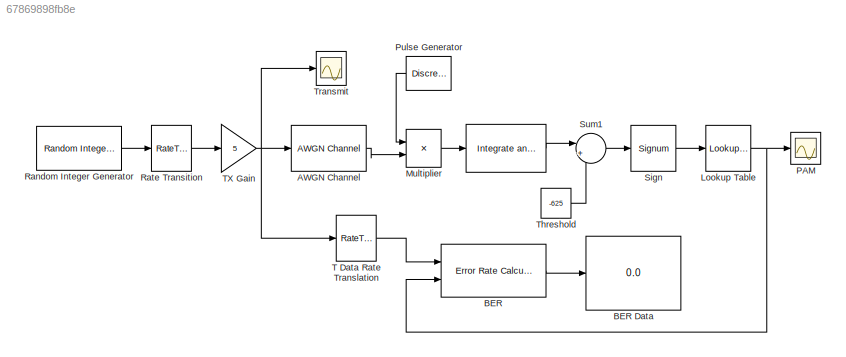
MODEL slx_67869898fb8e
KIND model
BLOCK [Reference]    REF=commfilt2/Integrate
and Dump
  LockScale = off
  Ports = [1, 1]
  SourceBlock = commfilt2/Integrate\nand Dump
  SourceType = Integrate and Dump
  accumFracLength = 30
  accumMode = Inherit via internal rule
  accumWordLength = 32
  nodump = off
  obssamples = 50
  offsetsamples = 0
  outputFracLength = 30
  outputMode = Same as accumulator
  outputWordLength = 32
  overflowMode = off
  roundingMode = Floor
BLOCK [Reference] AWGN Channel  REF=commchan3/AWGN
Channel
  EbNodB = 40
  EsNodB = 10
  InputProcessing = Inherited (this choice will be removed - see release notes)
  Ports = [1, 1]
  Ps = 25
  SNRdB = 10
  SourceBlock = commchan3/AWGN\nChannel
  SourceType = AWGN Channel
  Tsym = 1e-3
  UserDataPersistent = on
  bitsPerSym = 1
  noiseMode = Signal to noise ratio  (Eb/No)
  seed = randseed
  variance = 0
BLOCK [Reference] BER  REF=commsink2/Error Rate
Calculation
  N = 1
  PMode = Port
  Ports = [2, 1]
  RsMode2 = off
  SourceBlock = commsink2/Error Rate\nCalculation
  SourceType = Error Rate Calculation
  WsName = ErrorVec
  cp_mode = Entire frame
  maxBits = 1e6
  numErr = 100
  st_delay = 0
  stop = off
  subframe = []
BLOCK [Display] BER Data
  Decimation = 1
  Format = long
  Ports = [1]
BLOCK [Lookup_n-D] Lookup Table
  BreakpointsForDimension1 = [-1, 0, 1]
  InternalRulePriority = Speed
  NumberOfTableDimensions = 1
  Ports = [1, 1]
  RndMeth = Nearest
  Table = [0, 0, 5]
BLOCK [Product] Multiplier
  InputSameDT = off
  OutDataTypeStr = Inherit: Inherit via internal rule
  Ports = [2, 1]
  SaturateOnIntegerOverflow = off
BLOCK [Scope] PAM
  DataFormat = StructureWithTime
  Floating = off
  LimitDataPoints = off
  NumInputPorts = 1
  Ports = [1]
  SampleTime = 0
  SaveName = ScopeData1
  ShowLegends = off
  TimeRange = 0.05
  YMax = 8
  YMin = -8
BLOCK [DiscretePulseGenerator] Pulse Generator
  Amplitude = 5
  Period = 1e-3
  Ports = [0, 1]
  PulseType = Time based
  PulseWidth = 98
BLOCK [Reference] Random Integer Generator  REF=commrandsrc2/Random Integer
Generator
  Ports = [0, 1]
  SourceBlock = commrandsrc2/Random Integer\nGenerator
  SourceType = Random Integer Generator
  Ts = 1e-3
  frameBased = off
  mul = 2
  orient = on
  outDataType = double
  sampPerFrame = 50
  seed = randseed
BLOCK [RateTransition] Rate Transition
  OutPortSampleTime = 2e-5
BLOCK [Signum] Sign
BLOCK [Sum] Sum1
  IconShape = round
  InputSameDT = off
  Inputs = |++
  OutDataTypeStr = Inherit: Inherit via internal rule
  Ports = [2, 1]
  SaturateOnIntegerOverflow = off
BLOCK [RateTransition] T Data Rate Translation
  OutPortSampleTime = 1e-3
BLOCK [Gain] TX Gain
  Gain = 5
  OutDataTypeStr = Inherit: Inherit via internal rule
  ParamDataTypeStr = Inherit: Inherit via internal rule
  SaturateOnIntegerOverflow = off
BLOCK [Constant] Threshold
  Value = -625
BLOCK [Scope] Transmit
  DataFormat = StructureWithTime
  Floating = off
  LimitDataPoints = off
  NumInputPorts = 1
  Ports = [1]
  SampleTime = 0
  ShowLegends = off
  TimeRange = 0.05
  YMax = 8
  YMin = -8
LINE  :1 -> Sum1:1
LINE AWGN Channel:1 -> Multiplier:2
LINE BER:1 -> BER Data:1
NET Lookup Table:1 -> BER:2, PAM:1
LINE Multiplier:1 ->  :1
LINE Pulse Generator:1 -> Multiplier:1
LINE Random Integer Generator:1 -> Rate Transition:1
LINE Rate Transition:1 -> TX Gain:1
LINE Sign:1 -> Lookup Table:1
LINE Sum1:1 -> Sign:1
LINE T Data Rate Translation:1 -> BER:1
NET TX Gain:1 -> AWGN Channel:1, T Data Rate Translation:1, Transmit:1
LINE Threshold:1 -> Sum1:2
note: NET lines group one-source signal fan-out (src -> all destinations, sorted); 1:1 wires keep LINE
